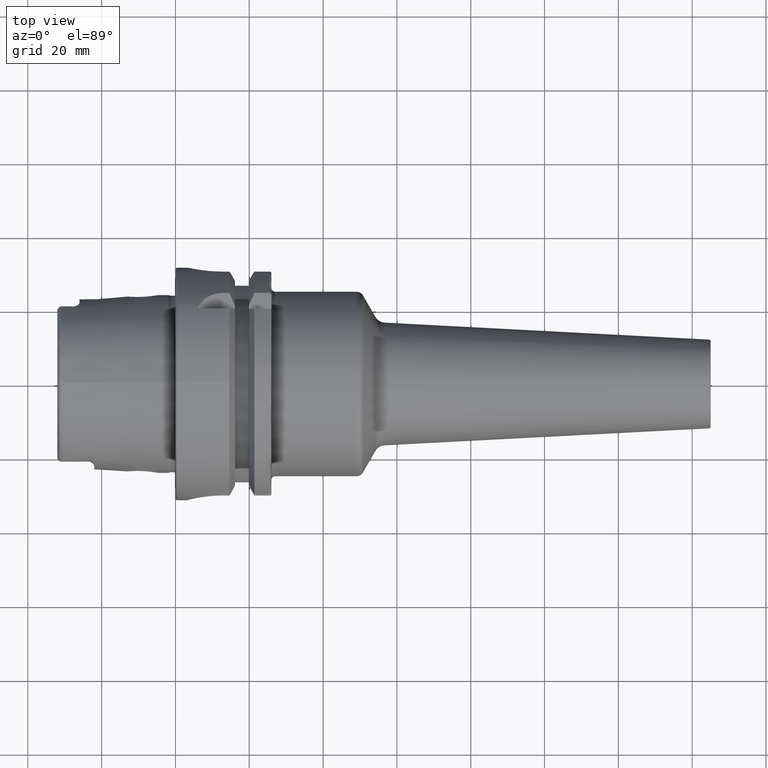
[diagram: clean part render]
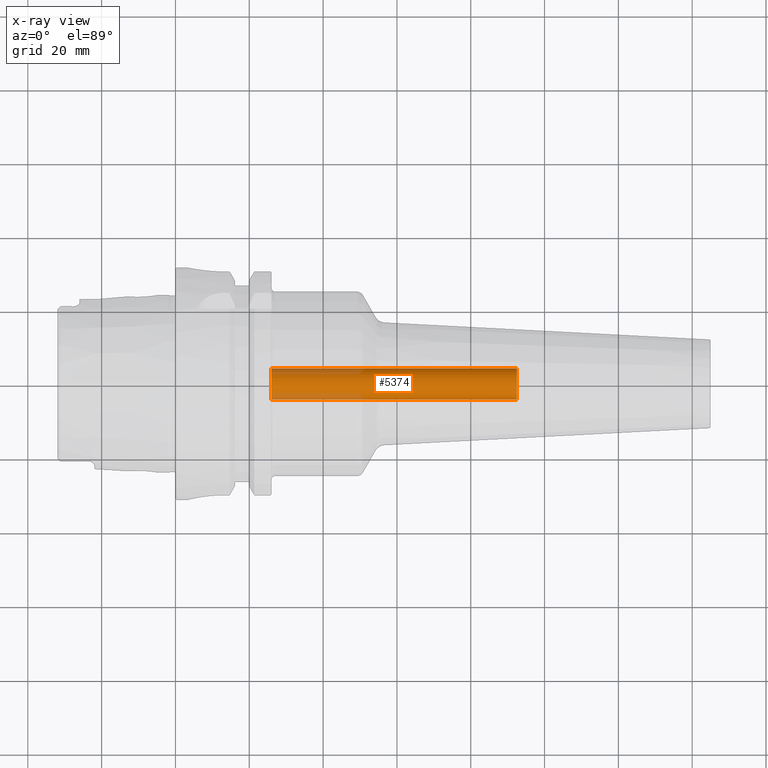
[diagram: x-ray — body ghosted, one internal face saturated and labeled with its STEP entity id]
A machine part, top view, then the same camera in x-ray: the body is ghosted and one INTERNAL B-rep face — a face not visible from any outside direction — is saturated and labeled: STEP entity #5374.
In plain terms, the highlighted cylindrical surface (edge-blend (fillet) strip) has radius 4.2 mm, axis along (1, 0, 0).
Its self-contained STEP definition (entity closure, byte-faithful):
#2142=CARTESIAN_POINT('',(2.6E1,0.E0,0.E0));
#2143=DIRECTION('',(1.E0,0.E0,0.E0));
#2144=DIRECTION('',(0.E0,1.E0,0.E0));
#2145=AXIS2_PLACEMENT_3D('',#2142,#2143,#2144);
#2162=DIRECTION('',(1.E0,0.E0,0.E0));
#2163=VECTOR('',#2162,6.65E1);
#2164=CARTESIAN_POINT('',(2.6E1,4.2E0,0.E0));
#2165=LINE('',#2164,#2163);
#2166=DIRECTION('',(1.E0,0.E0,0.E0));
#2167=VECTOR('',#2166,6.65E1);
#2168=CARTESIAN_POINT('',(2.6E1,-4.2E0,0.E0));
#2169=LINE('',#2168,#2167);
#2183=CARTESIAN_POINT('',(9.25E1,0.E0,0.E0));
#2184=DIRECTION('',(1.E0,0.E0,0.E0));
#2185=DIRECTION('',(0.E0,1.E0,0.E0));
#2186=AXIS2_PLACEMENT_3D('',#2183,#2184,#2185);
#2896=CARTESIAN_POINT('',(9.25E1,4.2E0,0.E0));
#2898=VERTEX_POINT('',#2896);
#2928=CARTESIAN_POINT('',(9.25E1,-4.2E0,0.E0));
#2930=VERTEX_POINT('',#2928);
#2960=CARTESIAN_POINT('',(2.6E1,4.2E0,0.E0));
#2961=CARTESIAN_POINT('',(2.6E1,-4.2E0,0.E0));
#2962=VERTEX_POINT('',#2960);
#2963=VERTEX_POINT('',#2961);
#5360=CARTESIAN_POINT('',(2.005E1,0.E0,0.E0));
#5361=DIRECTION('',(1.E0,0.E0,0.E0));
#5362=DIRECTION('',(0.E0,-1.E0,0.E0));
#5363=AXIS2_PLACEMENT_3D('',#5360,#5361,#5362);
#5364=CYLINDRICAL_SURFACE('',#5363,4.2E0);
#5365=ORIENTED_EDGE('',*,*,#5353,.T.);
#5367=ORIENTED_EDGE('',*,*,#5366,.T.);
#5369=ORIENTED_EDGE('',*,*,#5368,.F.);
#5371=ORIENTED_EDGE('',*,*,#5370,.F.);
#5372=EDGE_LOOP('',(#5365,#5367,#5369,#5371));
#5373=FACE_OUTER_BOUND('',#5372,.F.);
#5374=ADVANCED_FACE('',(#5373),#5364,.F.);
#2146=CIRCLE('',#2145,4.2E0);
#2187=CIRCLE('',#2186,4.2E0);
#5353=EDGE_CURVE('',#2962,#2963,#2146,.T.);
#5366=EDGE_CURVE('',#2963,#2930,#2169,.T.);
#5368=EDGE_CURVE('',#2898,#2930,#2187,.T.);
#5370=EDGE_CURVE('',#2962,#2898,#2165,.T.);